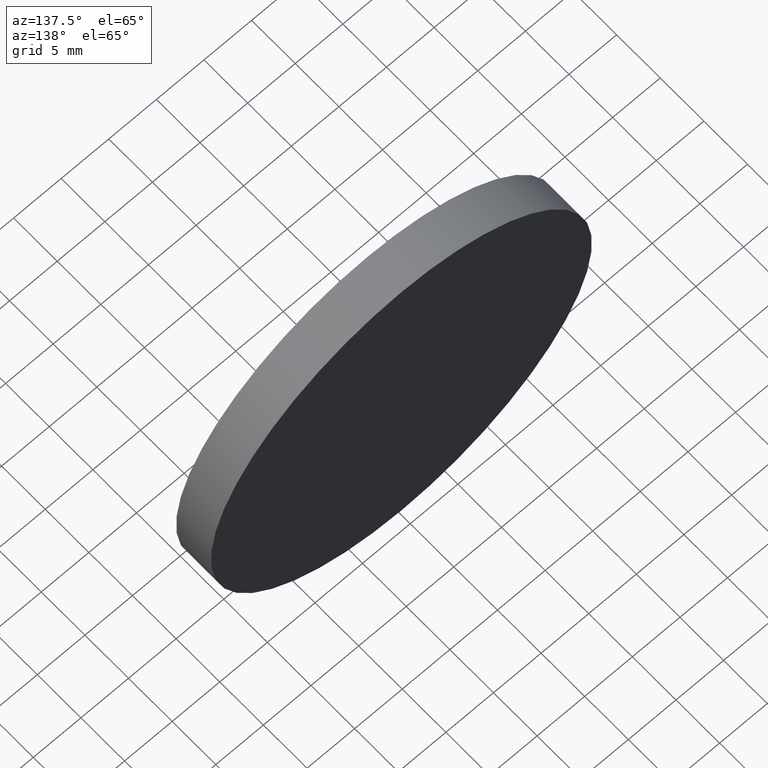
[diagram: clean part render]
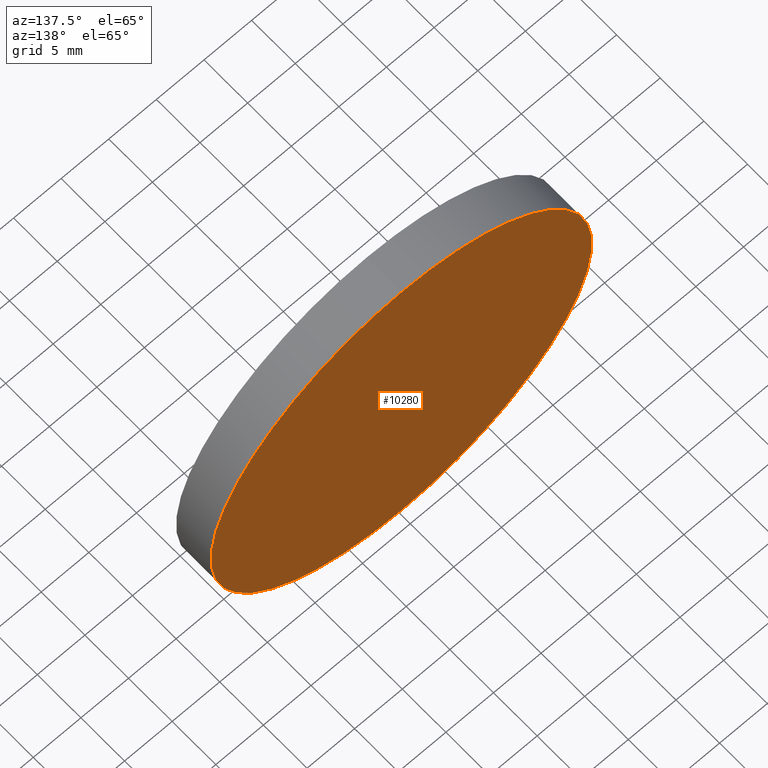
[diagram: same view with one face highlighted and labeled with its STEP entity id]
A machine part, auxiliary view. The second image highlights one B-rep face of the part: STEP entity #10280.
In plain terms, the highlighted planar face has unit normal (0, 1, 0).
Its self-contained STEP definition (entity closure, byte-faithful):
#163 = CARTESIAN_POINT ( 'NONE',  ( 0.0000000000000000000, 4.000000000000000000, 0.0000000000000000000 ) ) ;
#909 = EDGE_LOOP ( 'NONE', ( #11456, #5018 ) ) ;
#1248 = AXIS2_PLACEMENT_3D ( 'NONE', #9567, #2018, #4776 ) ;
#1454 = CARTESIAN_POINT ( 'NONE',  ( 2.449293598294706500E-015, 4.000000000000000000, 20.00000000000000000 ) ) ;
#1893 = DIRECTION ( 'NONE',  ( 0.0000000000000000000, -0.0000000000000000000, 1.000000000000000000 ) ) ;
#2018 = DIRECTION ( 'NONE',  ( 0.0000000000000000000, 1.000000000000000000, 0.0000000000000000000 ) ) ;
#3483 = FACE_OUTER_BOUND ( 'NONE', #909, .T. ) ;
#4122 = CIRCLE ( 'NONE', #5232, 20.00000000000000000 ) ;
#4611 = PLANE ( 'NONE',  #10065 ) ;
#4776 = DIRECTION ( 'NONE',  ( 0.0000000000000000000, 0.0000000000000000000, 1.000000000000000000 ) ) ;
#5018 = ORIENTED_EDGE ( 'NONE', *, *, #5127, .T. ) ;
#5094 = CARTESIAN_POINT ( 'NONE',  ( 0.0000000000000000000, 4.000000000000000000, -20.00000000000000000 ) ) ;
#5127 = EDGE_CURVE ( 'NONE', #12238, #7281, #7225, .T. ) ;
#5232 = AXIS2_PLACEMENT_3D ( 'NONE', #163, #6898, #6782 ) ;
#6616 = CARTESIAN_POINT ( 'NONE',  ( 0.0000000000000000000, 4.000000000000000000, 0.0000000000000000000 ) ) ;
#6700 = EDGE_CURVE ( 'NONE', #7281, #12238, #4122, .T. ) ;
#6782 = DIRECTION ( 'NONE',  ( 0.0000000000000000000, 0.0000000000000000000, 1.000000000000000000 ) ) ;
#6898 = DIRECTION ( 'NONE',  ( 0.0000000000000000000, 1.000000000000000000, 0.0000000000000000000 ) ) ;
#7225 = CIRCLE ( 'NONE', #1248, 20.00000000000000000 ) ;
#7281 = VERTEX_POINT ( 'NONE', #5094 ) ;
#9567 = CARTESIAN_POINT ( 'NONE',  ( 0.0000000000000000000, 4.000000000000000000, 0.0000000000000000000 ) ) ;
#10065 = AXIS2_PLACEMENT_3D ( 'NONE', #6616, #11356, #1893 ) ;
#10280 = ADVANCED_FACE ( 'NONE', ( #3483 ), #4611, .T. ) ;
#11356 = DIRECTION ( 'NONE',  ( 0.0000000000000000000, 1.000000000000000000, 0.0000000000000000000 ) ) ;
#11456 = ORIENTED_EDGE ( 'NONE', *, *, #6700, .T. ) ;
#12238 = VERTEX_POINT ( 'NONE', #1454 ) ;